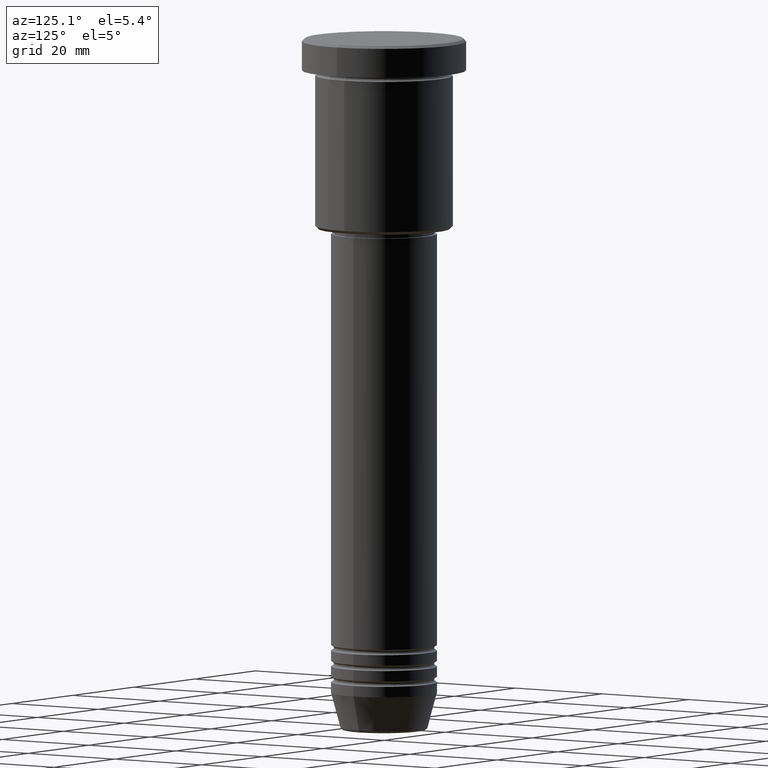
[diagram: clean part render]
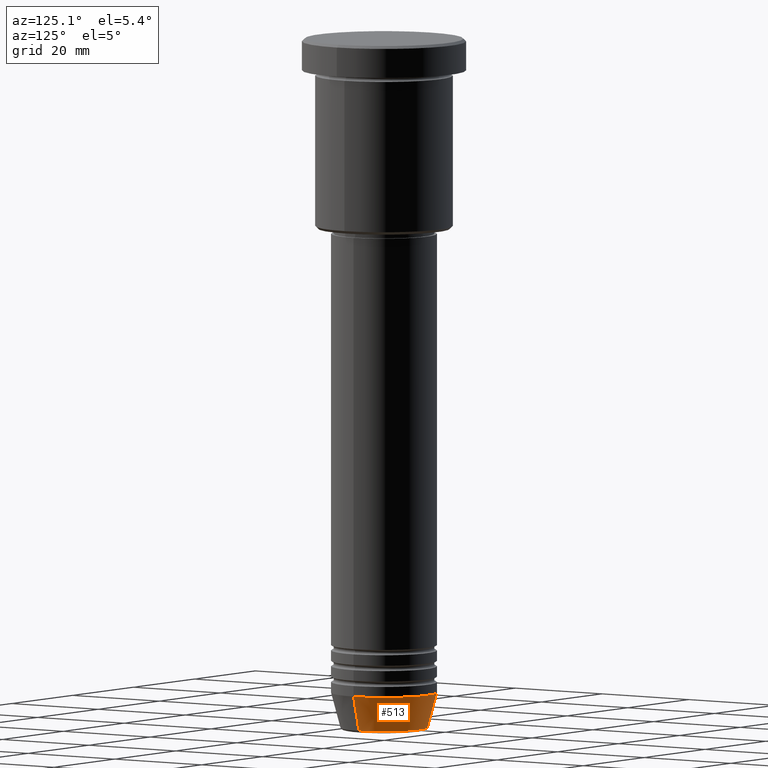
[diagram: same view with one face highlighted and labeled with its STEP entity id]
A machine part, auxiliary view. The second image highlights one B-rep face of the part: STEP entity #513.
In plain terms, the highlighted conical surface has half-angle 15 deg.
Its self-contained STEP definition (entity closure, byte-faithful):
#54 = DIRECTION ( 'NONE',  ( 1.000000000000000000, 0.000000000000000000, 0.000000000000000000 ) ) ;
#59 = ORIENTED_EDGE ( 'NONE', *, *, #204, .T. ) ;
#65 = DIRECTION ( 'NONE',  ( -0.2588190451025213501, 3.169619151431772337E-17, 0.9659258262890680902 ) ) ;
#80 = CARTESIAN_POINT ( 'NONE',  ( -10.00000000000000000, 1.224646799147353256E-15, -124.0000000000000000 ) ) ;
#129 = FACE_OUTER_BOUND ( 'NONE', #188, .T. ) ;
#188 = EDGE_LOOP ( 'NONE', ( #59, #299, #212, #1124 ) ) ;
#204 = EDGE_CURVE ( 'NONE', #890, #491, #1106, .T. ) ;
#212 = ORIENTED_EDGE ( 'NONE', *, *, #963, .F. ) ;
#239 = CARTESIAN_POINT ( 'NONE',  ( 8.223655072137191269, 0.000000000000000000, -130.6294095225512422 ) ) ;
#257 = EDGE_CURVE ( 'NONE', #491, #658, #811, .T. ) ;
#280 = VERTEX_POINT ( 'NONE', #887 ) ;
#299 = ORIENTED_EDGE ( 'NONE', *, *, #257, .T. ) ;
#406 = CARTESIAN_POINT ( 'NONE',  ( 10.00000000000000000, 0.000000000000000000, -124.0000000000000000 ) ) ;
#470 = DIRECTION ( 'NONE',  ( -0.000000000000000000, -0.000000000000000000, 1.000000000000000000 ) ) ;
#491 = VERTEX_POINT ( 'NONE', #1031 ) ;
#513 = ADVANCED_FACE ( 'NONE', ( #129 ), #585, .T. ) ;
#585 = CONICAL_SURFACE ( 'NONE', #957, 10.00000000000000000, 0.2617993877991500740 ) ;
#605 = CARTESIAN_POINT ( 'NONE',  ( 0.000000000000000000, 0.000000000000000000, -130.6294095225512422 ) ) ;
#658 = VERTEX_POINT ( 'NONE', #80 ) ;
#672 = AXIS2_PLACEMENT_3D ( 'NONE', #941, #470, #1036 ) ;
#680 = DIRECTION ( 'NONE',  ( -0.000000000000000000, -0.000000000000000000, 1.000000000000000000 ) ) ;
#788 = CARTESIAN_POINT ( 'NONE',  ( 0.000000000000000000, 0.000000000000000000, -124.0000000000000000 ) ) ;
#811 = LINE ( 'NONE', #823, #822 ) ;
#822 = VECTOR ( 'NONE', #65, 1000.000000000000000 ) ;
#823 = CARTESIAN_POINT ( 'NONE',  ( -10.00000000000000000, 1.224646799147353256E-15, -124.0000000000000000 ) ) ;
#860 = AXIS2_PLACEMENT_3D ( 'NONE', #605, #680, #961 ) ;
#864 = VECTOR ( 'NONE', #1049, 1000.000000000000000 ) ;
#878 = EDGE_CURVE ( 'NONE', #890, #280, #1136, .T. ) ;
#887 = CARTESIAN_POINT ( 'NONE',  ( 10.00000000000000000, 0.000000000000000000, -124.0000000000000000 ) ) ;
#890 = VERTEX_POINT ( 'NONE', #239 ) ;
#941 = CARTESIAN_POINT ( 'NONE',  ( 0.000000000000000000, 0.000000000000000000, -124.0000000000000000 ) ) ;
#957 = AXIS2_PLACEMENT_3D ( 'NONE', #788, #1058, #54 ) ;
#961 = DIRECTION ( 'NONE',  ( 1.000000000000000000, 0.000000000000000000, 0.000000000000000000 ) ) ;
#963 = EDGE_CURVE ( 'NONE', #280, #658, #1181, .T. ) ;
#1031 = CARTESIAN_POINT ( 'NONE',  ( -8.223655072137191269, 1.115877042642912054E-15, -130.6294095225512422 ) ) ;
#1036 = DIRECTION ( 'NONE',  ( 1.000000000000000000, 0.000000000000000000, 0.000000000000000000 ) ) ;
#1049 = DIRECTION ( 'NONE',  ( 0.2588190451025213501, 0.000000000000000000, 0.9659258262890680902 ) ) ;
#1058 = DIRECTION ( 'NONE',  ( -0.000000000000000000, -0.000000000000000000, 1.000000000000000000 ) ) ;
#1106 = CIRCLE ( 'NONE', #860, 8.223655072137191269 ) ;
#1124 = ORIENTED_EDGE ( 'NONE', *, *, #878, .F. ) ;
#1136 = LINE ( 'NONE', #406, #864 ) ;
#1181 = CIRCLE ( 'NONE', #672, 10.00000000000000000 ) ;